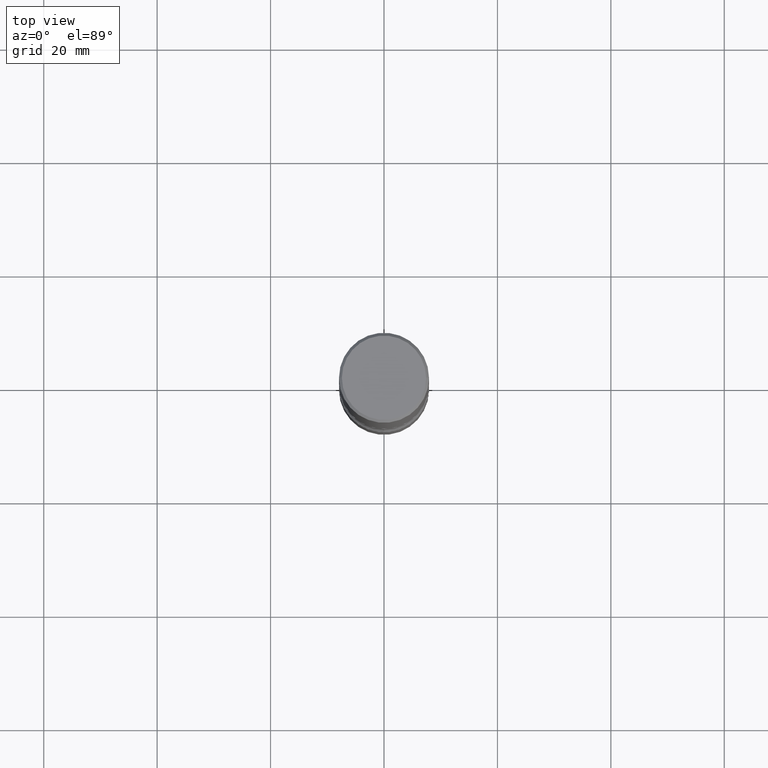
[diagram: clean part render]
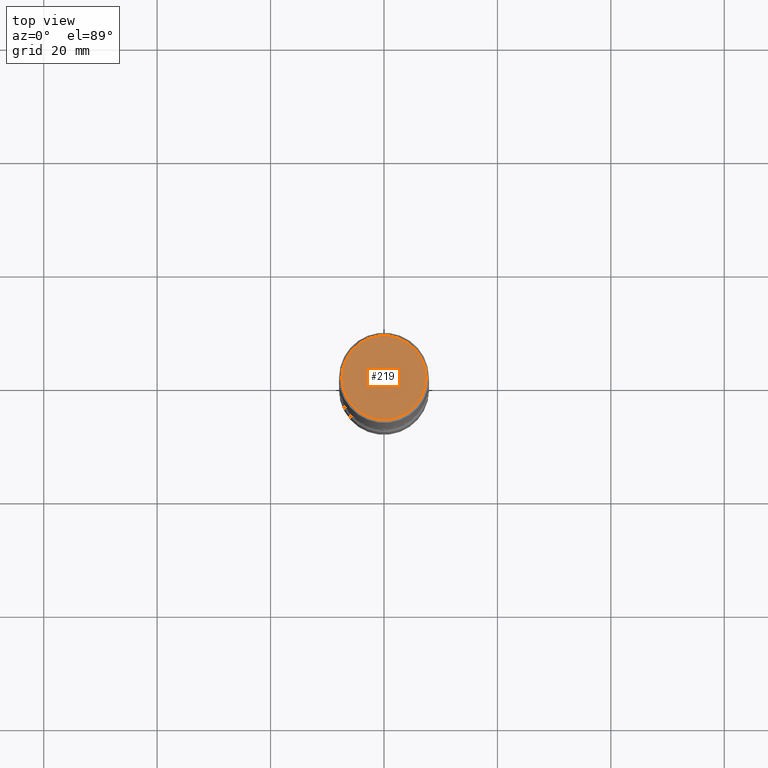
[diagram: same view with one face highlighted and labeled with its STEP entity id]
A machine part, top view. The second image highlights one B-rep face of the part: STEP entity #219.
In plain terms, the highlighted planar face has unit normal (0, -0, -1).
Its self-contained STEP definition (entity closure, byte-faithful):
#9 = DIRECTION ( 'NONE',  ( -1.000000000000000000, 6.982962677686265922E-15, -4.876176775795935793E-29 ) ) ;
#48 = EDGE_CURVE ( 'NONE', #170, #451, #51, .T. ) ;
#51 = CIRCLE ( 'NONE', #554, 0.2924999999999998157 ) ;
#58 = PLANE ( 'NONE',  #400 ) ;
#73 = DIRECTION ( 'NONE',  ( 1.000000000000000000, -6.982962677686266711E-15, 4.876067333457692840E-29 ) ) ;
#103 = CIRCLE ( 'NONE', #326, 0.2924999999999998157 ) ;
#110 = CARTESIAN_POINT ( 'NONE',  ( -1.043851414335219820E-46, 1.490343170380447200E-32, 4.268512490100411279E-18 ) ) ;
#122 = DIRECTION ( 'NONE',  ( -2.445468806185136597E-29, 3.491481338843145583E-15, 1.000000000000000000 ) ) ;
#170 = VERTEX_POINT ( 'NONE', #463 ) ;
#174 = EDGE_CURVE ( 'NONE', #451, #170, #103, .T. ) ;
#196 = DIRECTION ( 'NONE',  ( 1.000000000000000000, -6.982962677686266711E-15, 4.876067333457692840E-29 ) ) ;
#219 = ADVANCED_FACE ( 'NONE', ( #269 ), #58, .F. ) ;
#222 = CARTESIAN_POINT ( 'NONE',  ( 2.042516583223231356E-15, 0.2924999999999998157, -1.019124035366569212E-15 ) ) ;
#237 = DIRECTION ( 'NONE',  ( -2.445468806185136597E-29, 3.491481338843145583E-15, 1.000000000000000000 ) ) ;
#269 = FACE_OUTER_BOUND ( 'NONE', #522, .T. ) ;
#326 = AXIS2_PLACEMENT_3D ( 'NONE', #504, #122, #73 ) ;
#374 = CARTESIAN_POINT ( 'NONE',  ( 0.2924999999999998157, -2.110215457714318748E-15, 4.268512490114932791E-18 ) ) ;
#400 = AXIS2_PLACEMENT_3D ( 'NONE', #222, #407, #9 ) ;
#407 = DIRECTION ( 'NONE',  ( 2.438088387897960049E-29, -3.491481338843145188E-15, -1.000000000000000000 ) ) ;
#451 = VERTEX_POINT ( 'NONE', #374 ) ;
#463 = CARTESIAN_POINT ( 'NONE',  ( -0.2924999999999998157, 2.077431396611663005E-15, 4.268512490086005323E-18 ) ) ;
#480 = ORIENTED_EDGE ( 'NONE', *, *, #48, .T. ) ;
#502 = ORIENTED_EDGE ( 'NONE', *, *, #174, .T. ) ;
#504 = CARTESIAN_POINT ( 'NONE',  ( -1.043851414335219820E-46, 1.490343170380447200E-32, 4.268512490100411279E-18 ) ) ;
#522 = EDGE_LOOP ( 'NONE', ( #480, #502 ) ) ;
#554 = AXIS2_PLACEMENT_3D ( 'NONE', #110, #237, #196 ) ;